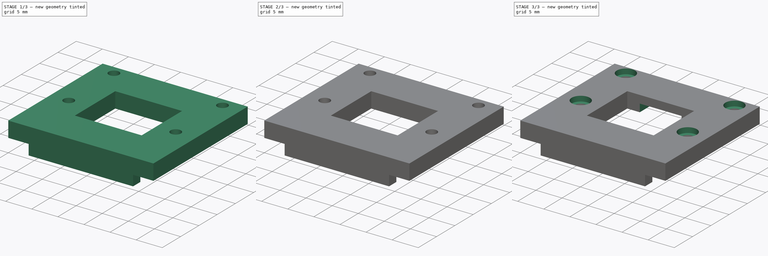
[diagram: build sequence overview — one tinted view per stage of 3, left to right]
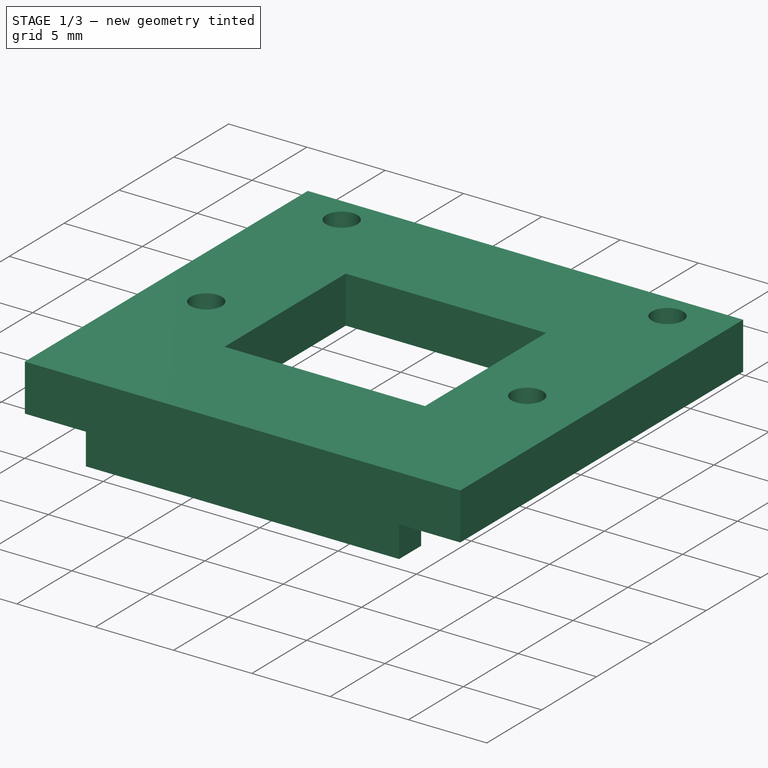
[diagram: stage 1 of 3 — iso view after this stage's code; geometry added in this stage tinted green]
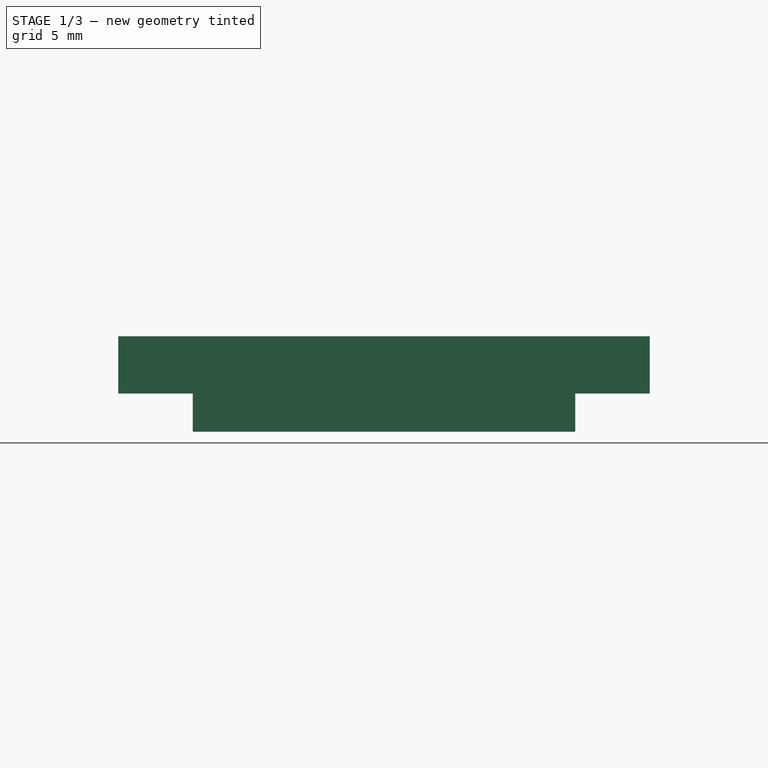
[diagram: stage 1 of 3 — front view after this stage's code; geometry added in this stage tinted green]
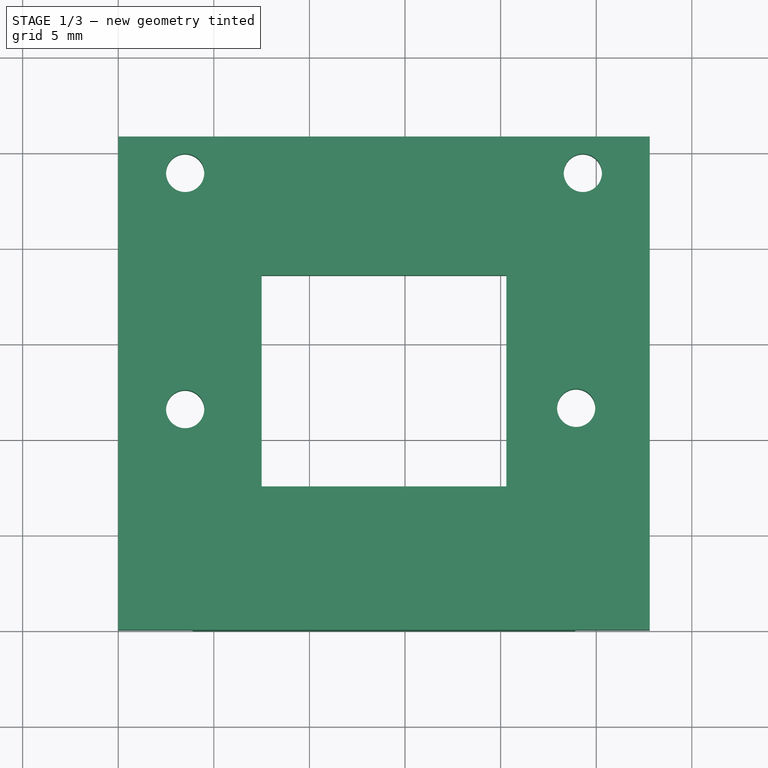
[diagram: stage 1 of 3 — top view after this stage's code; geometry added in this stage tinted green]
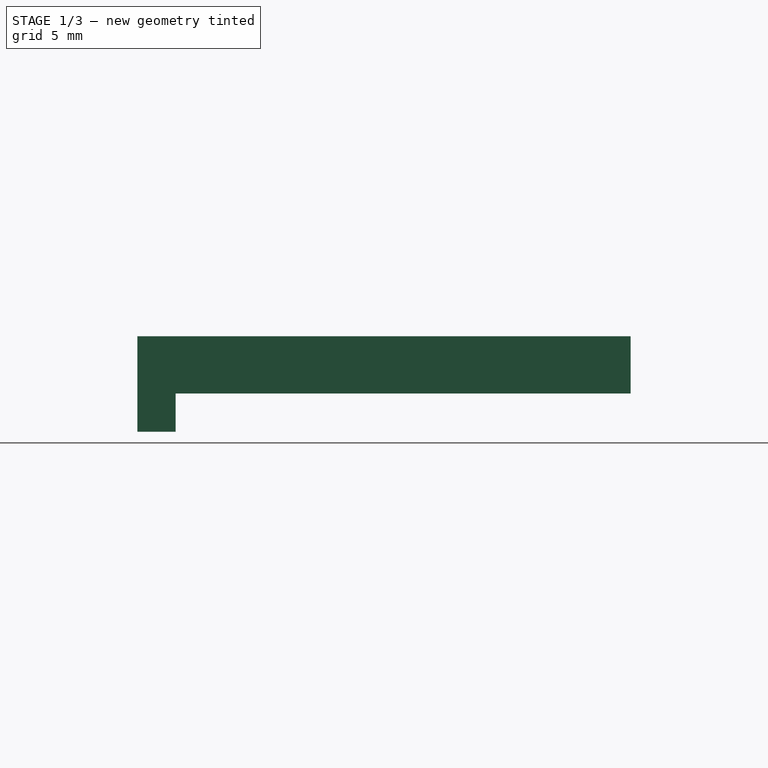
[diagram: stage 1 of 3 — right view after this stage's code; geometry added in this stage tinted green]
FCSTD DOCUMENT  (FreeCAD 0.19R23141 (Git))
Label: Camera Cover
License: All rights reserved
LicenseURL: http://en.wikipedia.org/wiki/All_rights_reserved
objects: Sketcher::SketchObject×6, PartDesign::Pad×3, PartDesign::Pocket×2, PartDesign::Body×1
note: 17 computed .brp shape members not serialized (recipe doc carries the construction recipe); baked Part::Feature solids carry a one-line shape summary decoded from their .brp

FEATURE [Sketcher::SketchObject] Sketch  label="4 screw & lens holes"
  MapMode = 5
  Support = -> [XY_Plane]
  sketch-geometry (12):
    g0: LineSegment StartX=0 StartY=0 StartZ=0 EndX=27.8 EndY=0 EndZ=0
    g1: LineSegment StartX=27.8 StartY=0 StartZ=0 EndX=27.8 EndY=25.8 EndZ=0
    g2: LineSegment StartX=27.8 StartY=25.8 StartZ=0 EndX=0 EndY=25.8 EndZ=0
    g3: LineSegment StartX=0 StartY=25.8 StartZ=0 EndX=0 EndY=0 EndZ=0
    g4: Circle CenterX=3.5 CenterY=23.9 CenterZ=0 NormalX=0 NormalY=0 NormalZ=1 AngleXU=0 Radius=1
    g5: Circle CenterX=24.3 CenterY=23.9 CenterZ=0 NormalX=0 NormalY=0 NormalZ=1 AngleXU=0 Radius=1
    g6: Circle CenterX=23.95 CenterY=11.61 CenterZ=0 NormalX=0 NormalY=0 NormalZ=1 AngleXU=0 Radius=1
    g7: Circle CenterX=3.5 CenterY=11.545 CenterZ=0 NormalX=0 NormalY=0 NormalZ=1 AngleXU=0 Radius=1
    g8: LineSegment StartX=7.5 StartY=18.55 StartZ=0 EndX=20.3 EndY=18.55 EndZ=0
    g9: LineSegment StartX=20.3 StartY=18.55 StartZ=0 EndX=20.3 EndY=7.5 EndZ=0
    g10: LineSegment StartX=20.3 StartY=7.5 StartZ=0 EndX=7.5 EndY=7.5 EndZ=0
    g11: LineSegment StartX=7.5 StartY=7.5 StartZ=0 EndX=7.5 EndY=18.55 EndZ=0
  constraints (35):
    c: Coincident(g0,g1)
    c: Coincident(g1,g2)
    c: Coincident(g2,g3)
    c: Coincident(g3,g0)
    c: Horizontal(g0)
    c: Horizontal(g2)
    c: Vertical(g1)
    c: Vertical(g3)
    c: Coincident(g0,g-1)
    c: DistanceX(g2,g2) = 27.8
    c: DistanceY(g1,g1) = 25.8
    c: Diameter(g4) = 2
    c: Equal(g4,g5) = 1
    c: Equal(g4,g6) = 1
    c: Equal(g4,g7) = 1
    c: DistanceY(g4,g2) = 1.9
    c: DistanceY(g5,g1) = 1.9
    c: DistanceX(g2,g4) = 3.5
    c: DistanceX(g4,g5) = 20.8
    c: DistanceX(g7,g6) = 20.45
    c: DistanceY(g7,g4) = 12.355
    c: DistanceY(g6,g5) = 12.29
    c: DistanceX(g2,g7) = 3.5
    c: Coincident(g8,g9)
    c: Coincident(g9,g10)
    c: Coincident(g10,g11)
    c: Coincident(g11,g8)
    c: Horizontal(g8)
    c: Horizontal(g10)
    c: Vertical(g9)
    c: Vertical(g11)
    c: DistanceY(g8,g2) = 7.25
    c: DistanceX(g2,g10) = 7.5
    c: DistanceY(g0,g10) = 7.5
    c: DistanceX(g9,g0) = 7.5
FEATURE [PartDesign::Pad] Pad  label="Screws & Lens "
  Direction = (1,1,1)
  Length = 3
  Length2 = 100
  Profile = -> Sketch
  Type = 0
FEATURE [Sketcher::SketchObject] Sketch002  label="Cable Holder"
  MapMode = 5
  Support = -> [XY_Plane]
  sketch-geometry (4):
    g0: LineSegment StartX=3.9 StartY=2 StartZ=0 EndX=23.9 EndY=2 EndZ=0
    g1: LineSegment StartX=23.9 StartY=2 StartZ=0 EndX=23.9 EndY=0 EndZ=0
    g2: LineSegment StartX=23.9 StartY=0 StartZ=0 EndX=3.9 EndY=0 EndZ=0
    g3: LineSegment StartX=3.9 StartY=0 StartZ=0 EndX=3.9 EndY=2 EndZ=0
  constraints (12):
    c: Coincident(g0,g1)
    c: Coincident(g1,g2)
    c: Coincident(g2,g3)
    c: Coincident(g3,g0)
    c: Horizontal(g0)
    c: Horizontal(g2)
    c: Vertical(g1)
    c: Vertical(g3)
    c: PointOnObject(g1,g-1)
    c: DistanceY(g1,g1) = 2
    c: DistanceX(g0,g0) = 20
    c: DistanceX(g-1,g2) = 3.9
FEATURE [PartDesign::Pad] Pad001  label="Cable Restraint"
  BaseFeature = -> Pad
  Direction = (1,1,1)
  Length = 2
  Length2 = 100
  Profile = -> Sketch002
  Reversed = true
  Type = 0
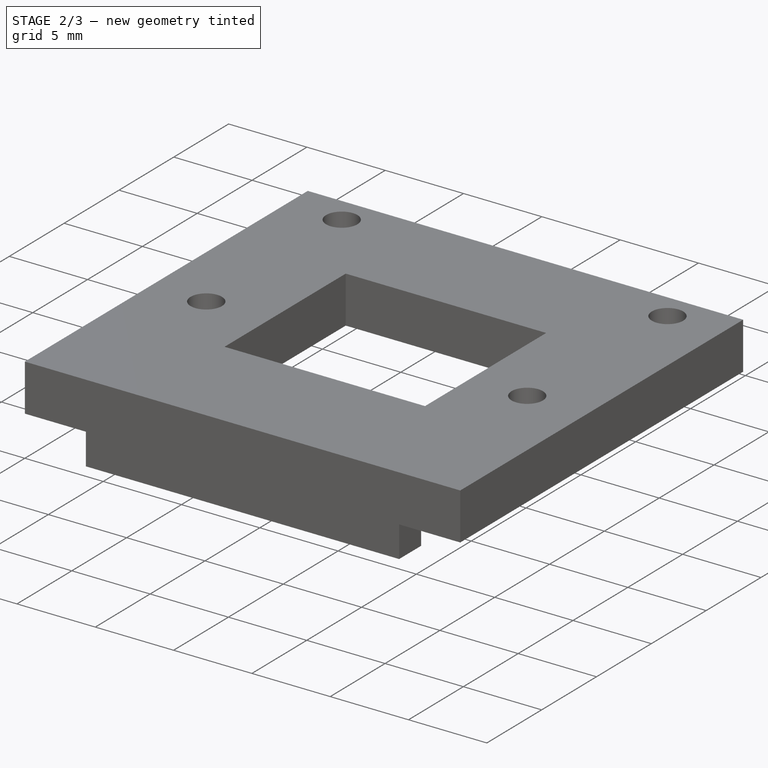
[diagram: stage 2 of 3 — iso view after this stage's code; geometry added in this stage tinted green]
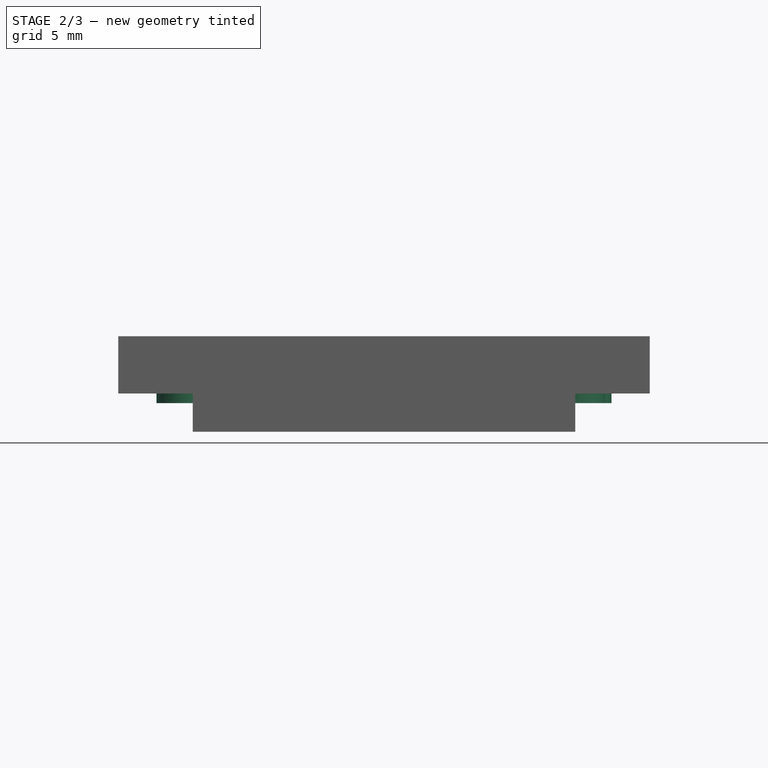
[diagram: stage 2 of 3 — front view after this stage's code; geometry added in this stage tinted green]
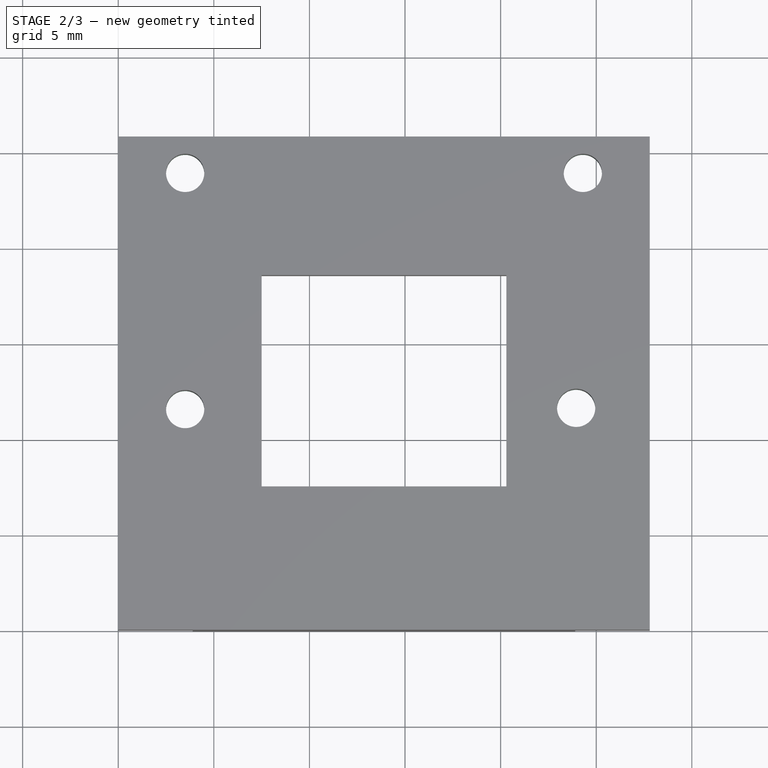
[diagram: stage 2 of 3 — top view after this stage's code; geometry added in this stage tinted green]
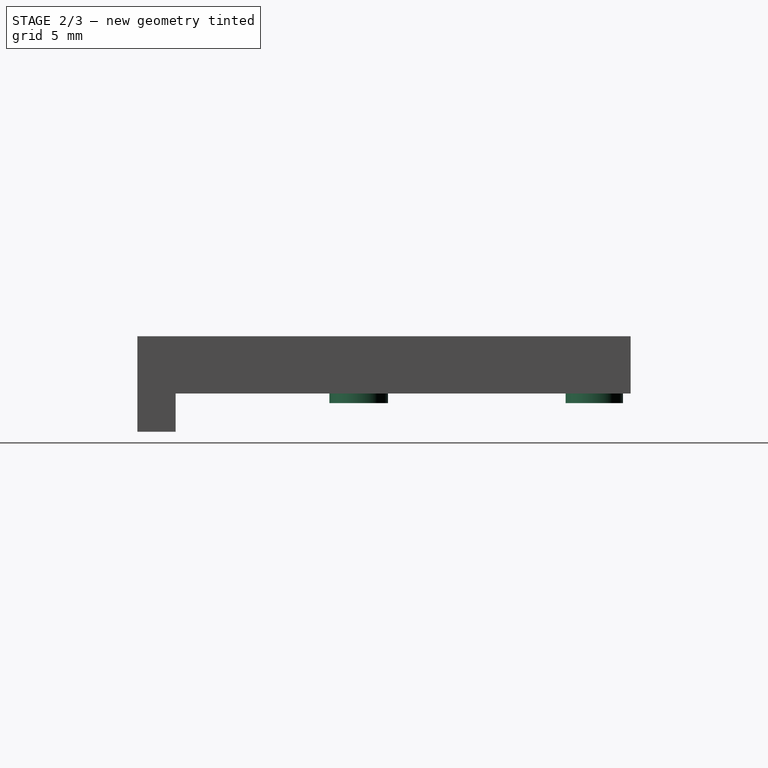
[diagram: stage 2 of 3 — right view after this stage's code; geometry added in this stage tinted green]
FEATURE [Sketcher::SketchObject] Sketch003
  ExternalGeometry = -> [Pad]
  MapMode = 5
  Placement = pos=(0,0,0) rot=(1,0,0;3.14159rad)
  Support = -> [Pad]
  sketch-geometry (8):
    g0: Circle CenterX=24.3 CenterY=-23.9 CenterZ=0 NormalX=0 NormalY=0 NormalZ=1 AngleXU=0 Radius=1.5
    g1: Circle CenterX=24.3 CenterY=-23.9 CenterZ=0 NormalX=0 NormalY=0 NormalZ=1 AngleXU=0 Radius=1
    g2: Circle CenterX=3.5 CenterY=-23.9 CenterZ=0 NormalX=0 NormalY=0 NormalZ=1 AngleXU=0 Radius=1.5
    g3: Circle CenterX=3.5 CenterY=-23.9 CenterZ=0 NormalX=0 NormalY=0 NormalZ=1 AngleXU=0 Radius=1
    g4: Circle CenterX=23.95 CenterY=-11.61 CenterZ=0 NormalX=0 NormalY=0 NormalZ=1 AngleXU=0 Radius=1.5
    g5: Circle CenterX=23.95 CenterY=-11.61 CenterZ=0 NormalX=0 NormalY=0 NormalZ=1 AngleXU=0 Radius=1
    g6: Circle CenterX=3.5 CenterY=-11.545 CenterZ=0 NormalX=0 NormalY=0 NormalZ=1 AngleXU=0 Radius=1.5
    g7: Circle CenterX=3.5 CenterY=-11.545 CenterZ=0 NormalX=0 NormalY=0 NormalZ=1 AngleXU=0 Radius=1
  constraints (16):
    c: Diameter(g0) = 3
    c: Coincident(g1,g0)
    c: Diameter(g1) = 2
    c: Equal(g0,g2) = 3
    c: Coincident(g3,g2)
    c: Equal(g1,g3) = 2
    c: Equal(g0,g4) = 3
    c: Coincident(g5,g4)
    c: Equal(g1,g5) = 2
    c: Equal(g0,g6) = 3
    c: Coincident(g7,g6)
    c: Equal(g1,g7) = 2
    c: Coincident(g-4,g0)
    c: Coincident(g-3,g2)
    c: Coincident(g6,g-6)
    c: Coincident(g-5,g4)
FEATURE [PartDesign::Pad] Pad002  label="Standoff Pad"
  BaseFeature = -> Pad001
  Direction = (1,1,1)
  Length = 0.5
  Length2 = 100
  Profile = -> Sketch003
  Type = 0
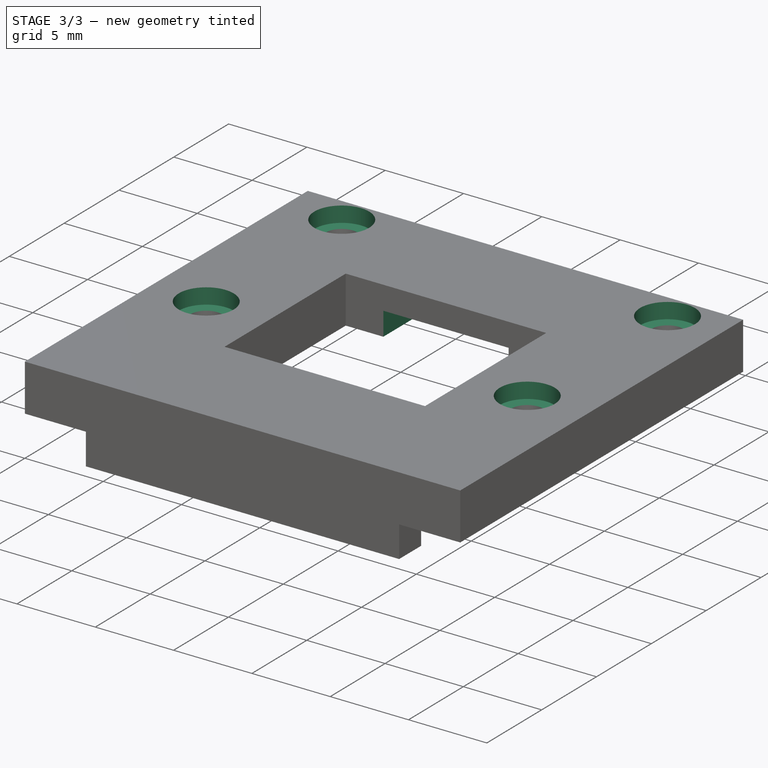
[diagram: stage 3 of 3 — iso view after this stage's code; geometry added in this stage tinted green]
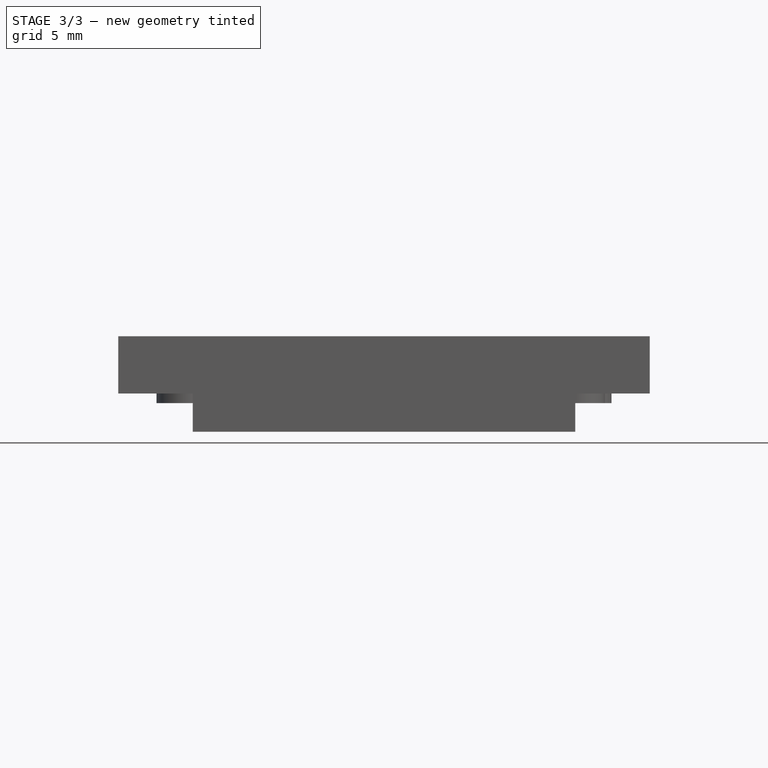
[diagram: stage 3 of 3 — front view after this stage's code; geometry added in this stage tinted green]
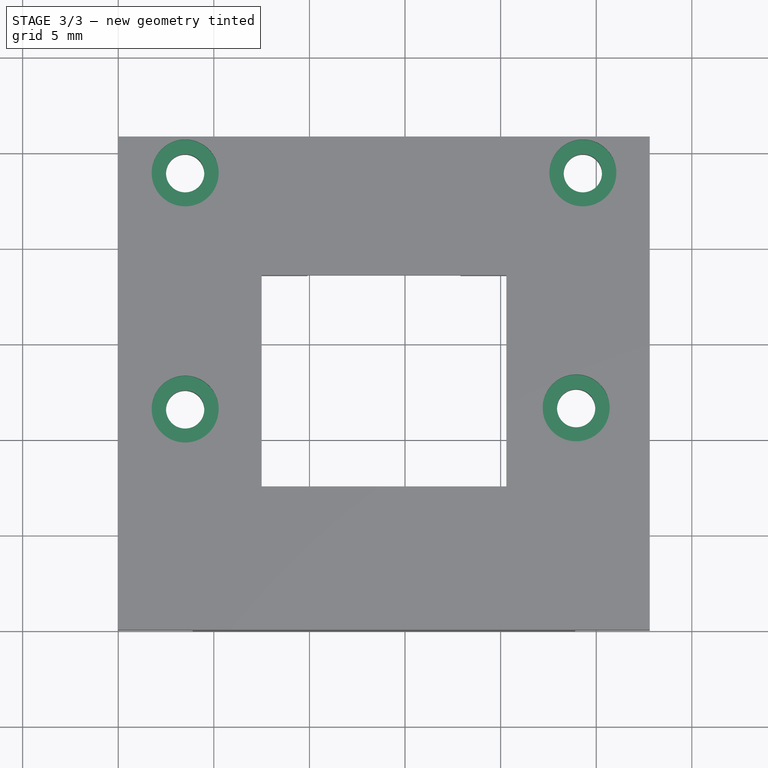
[diagram: stage 3 of 3 — top view after this stage's code; geometry added in this stage tinted green]
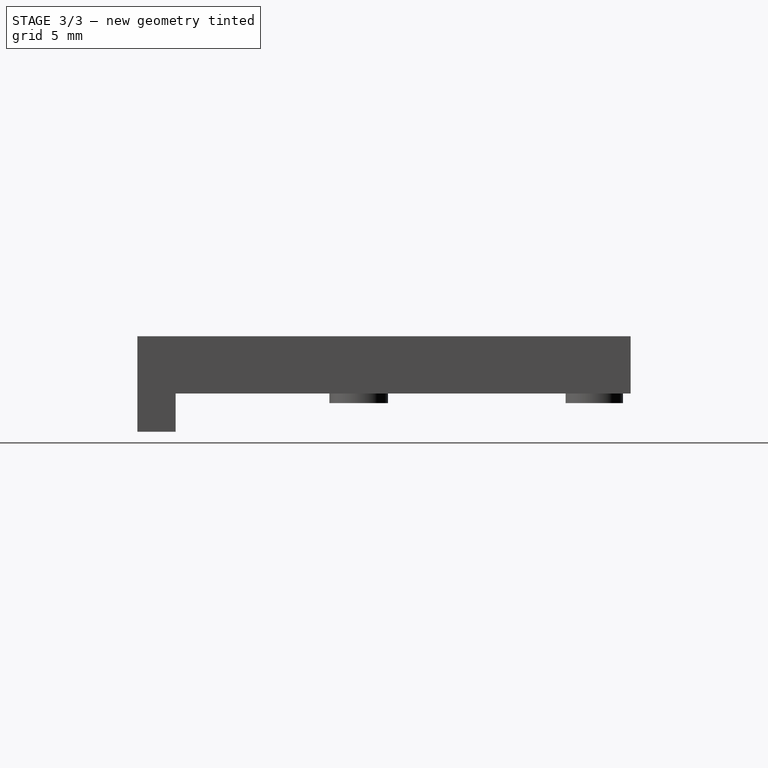
[diagram: stage 3 of 3 — right view after this stage's code; geometry added in this stage tinted green]
FEATURE [Sketcher::SketchObject] Sketch004  label="Standoffs"
  ExternalGeometry = -> [Pad]
  MapMode = 5
  Placement = pos=(0,0,0) rot=(1,0,0;3.14159rad)
  Support = -> [Pad]
  sketch-geometry (4):
    g0: Circle CenterX=24.3 CenterY=-23.9 CenterZ=0 NormalX=0 NormalY=0 NormalZ=1 AngleXU=0 Radius=1.5
    g1: Circle CenterX=3.5 CenterY=-23.9 CenterZ=0 NormalX=0 NormalY=0 NormalZ=1 AngleXU=0 Radius=1.5
    g2: Circle CenterX=23.95 CenterY=-11.61 CenterZ=0 NormalX=0 NormalY=0 NormalZ=1 AngleXU=0 Radius=1.5
    g3: Circle CenterX=3.5 CenterY=-11.545 CenterZ=0 NormalX=0 NormalY=0 NormalZ=1 AngleXU=0 Radius=1.5
  constraints (8):
    c: Diameter(g0) = 3
    c: Equal(g0,g1) = 3
    c: Equal(g0,g2) = 3
    c: Equal(g0,g3) = 3
    c: Coincident(g0,g-3)
    c: Coincident(g1,g-4)
    c: Coincident(g3,g-5)
    c: Coincident(g-7,g2)
FEATURE [Sketcher::SketchObject] Sketch005
  ExternalGeometry = -> [Pad002]
  MapMode = 5
  Placement = pos=(0,0,3) rot=(0,0,1;0rad)
  Support = -> [Pad002]
  sketch-geometry (4):
    g0: Circle CenterX=23.95 CenterY=11.61 CenterZ=0 NormalX=0 NormalY=0 NormalZ=1 AngleXU=0 Radius=1.75
    g1: Circle CenterX=3.5 CenterY=11.545 CenterZ=0 NormalX=0 NormalY=0 NormalZ=1 AngleXU=0 Radius=1.75
    g2: Circle CenterX=3.5 CenterY=23.9 CenterZ=0 NormalX=0 NormalY=0 NormalZ=1 AngleXU=0 Radius=1.75
    g3: Circle CenterX=24.3 CenterY=23.9 CenterZ=0 NormalX=0 NormalY=0 NormalZ=1 AngleXU=0 Radius=1.75
  constraints (8):
    c: Coincident(g-3,g0)
    c: Diameter(g0) = 3.5
    c: Equal(g0,g1) = 3
    c: Coincident(g1,g-4)
    c: Equal(g0,g2) = 3
    c: Equal(g0,g3) = 3
    c: Coincident(g3,g-6)
    c: Coincident(g2,g-5)
FEATURE [PartDesign::Pocket] Pocket  label="Countersink"
  BaseFeature = -> Pad002
  Length = 1
  Length2 = 100
  Profile = -> Sketch005
  Type = 0
FEATURE [Sketcher::SketchObject] Sketch006
  ExternalGeometry = -> [Pad001]
  MapMode = 5
  Placement = pos=(0,0,0) rot=(1,0,0;3.14159rad)
  Support = -> [Pad001]
  sketch-geometry (4):
    g0: LineSegment StartX=9.9 StartY=-18.55 StartZ=0 EndX=17.9 EndY=-18.55 EndZ=0
    g1: LineSegment StartX=17.9 StartY=-18.55 StartZ=0 EndX=17.9 EndY=-25.8 EndZ=0
    g2: LineSegment StartX=17.9 StartY=-25.8 StartZ=0 EndX=9.9 EndY=-25.8 EndZ=0
    g3: LineSegment StartX=9.9 StartY=-25.8 StartZ=0 EndX=9.9 EndY=-18.55 EndZ=0
  constraints (12):
    c: Coincident(g0,g1)
    c: Coincident(g1,g2)
    c: Coincident(g2,g3)
    c: Coincident(g3,g0)
    c: Horizontal(g0)
    c: Horizontal(g2)
    c: Vertical(g1)
    c: Vertical(g3)
    c: DistanceY(g0,g-3) = 0
    c: DistanceY(g-4,g2) = 0
    c: DistanceX(g0,g0) = 8
    c: DistanceX(g1,g-4) = 9.9
FEATURE [PartDesign::Pocket] Pocket001  label="Cable Relief"
  BaseFeature = -> Pocket
  Length = 1.5
  Length2 = 100
  Profile = -> Sketch006
  Type = 0
FEATURE [PartDesign::Body] Body
  Group = -> [Sketch,Pad,Sketch002,Pad001,Sketch003,Pad002,Sketch004,Sketch005,Pocket,Sketch006,Pocket001]
  Origin = -> Origin
  Tip = -> Pocket001
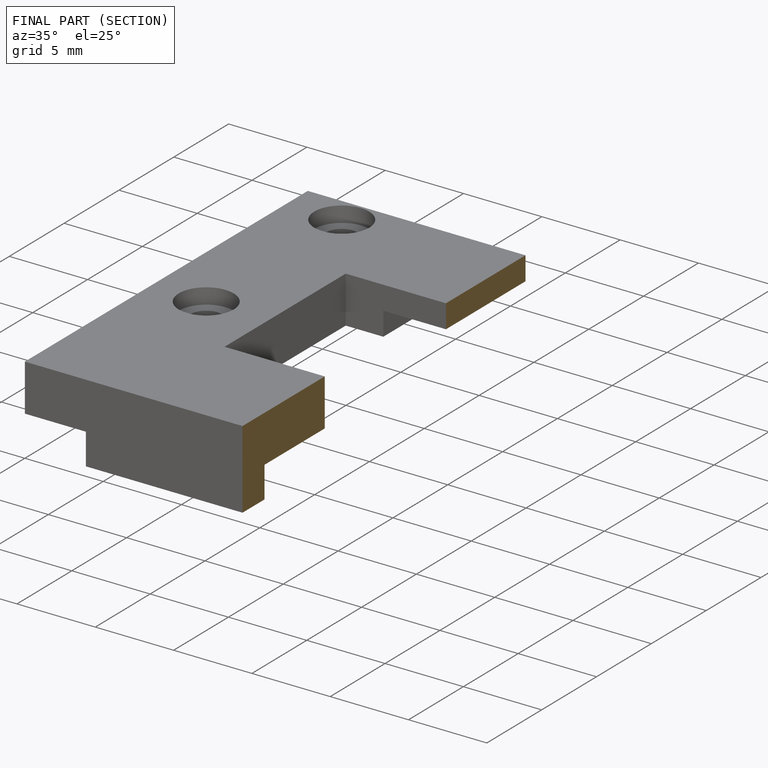
[diagram: finished part — half-section view (interior)]
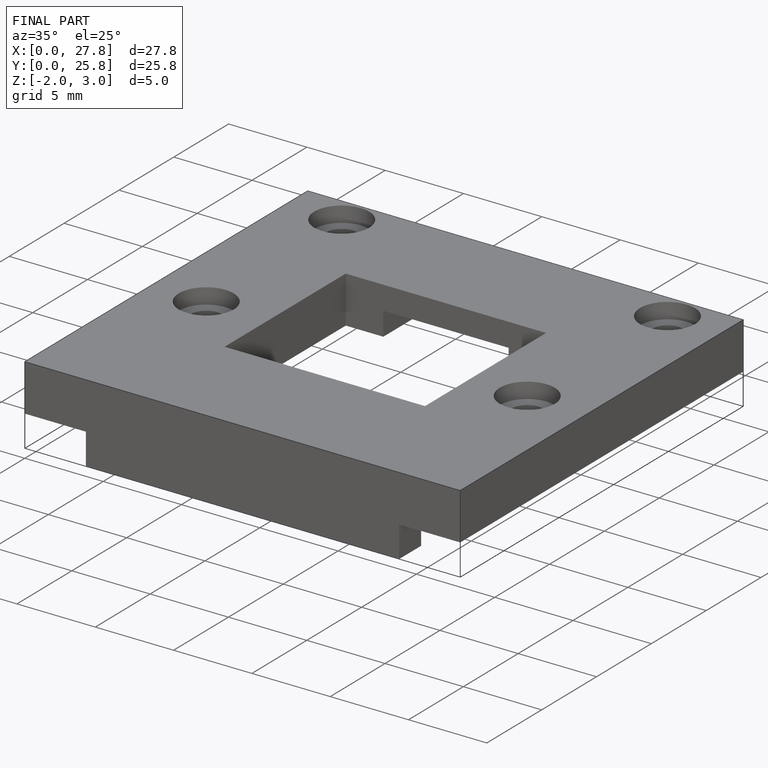
[diagram: finished part — iso view with bounding-box wireframe]
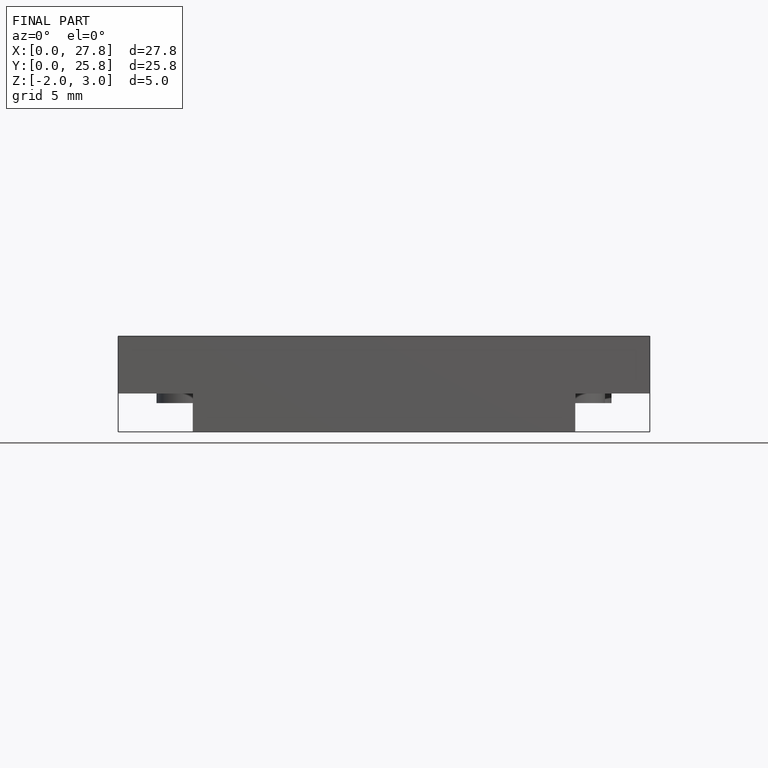
[diagram: finished part — front view with bounding-box wireframe]
